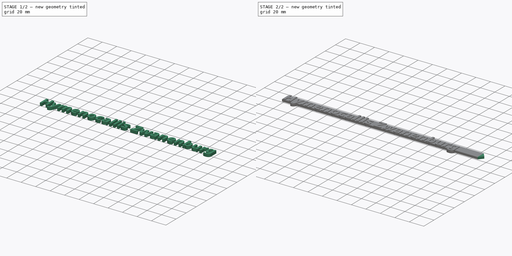
[diagram: build sequence overview — one tinted view per stage of 2, left to right]
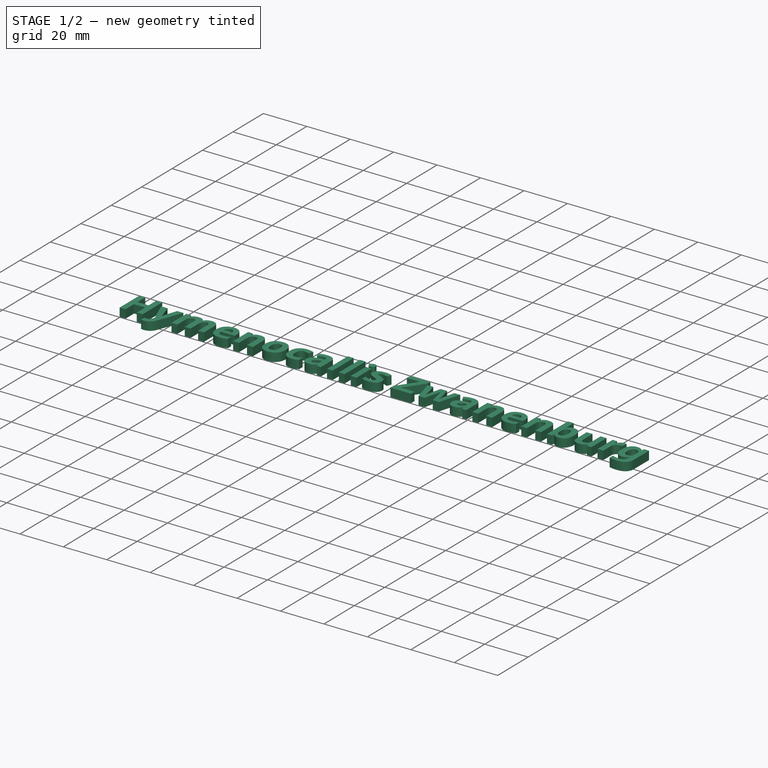
[diagram: stage 1 of 2 — iso view after this stage's code; geometry added in this stage tinted green]
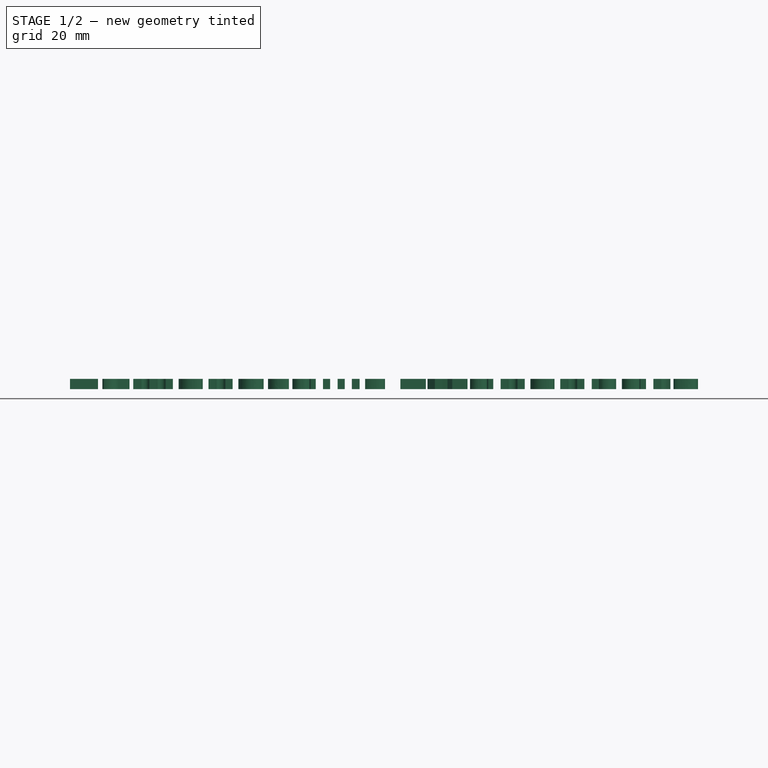
[diagram: stage 1 of 2 — front view after this stage's code; geometry added in this stage tinted green]
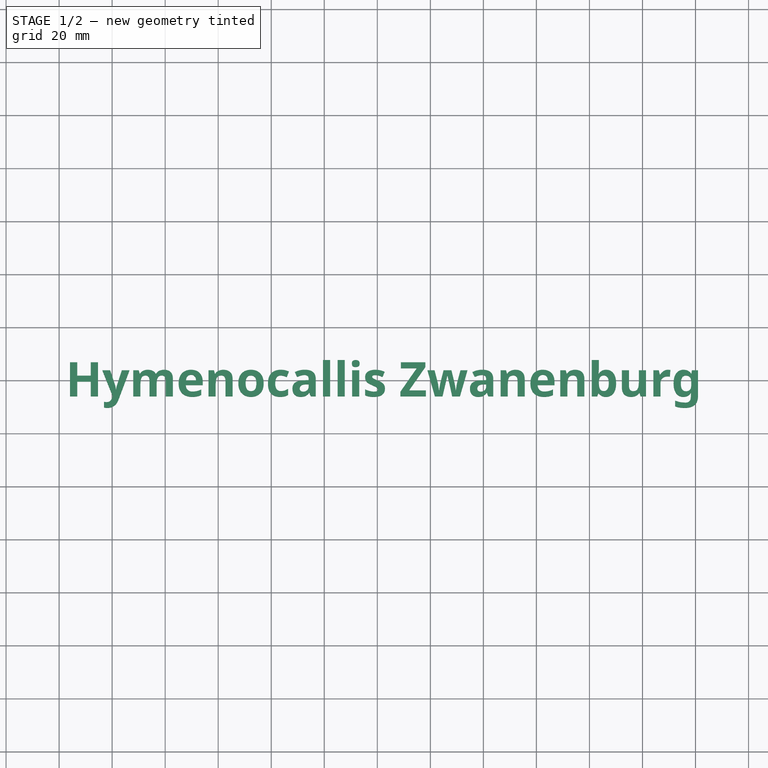
[diagram: stage 1 of 2 — top view after this stage's code; geometry added in this stage tinted green]
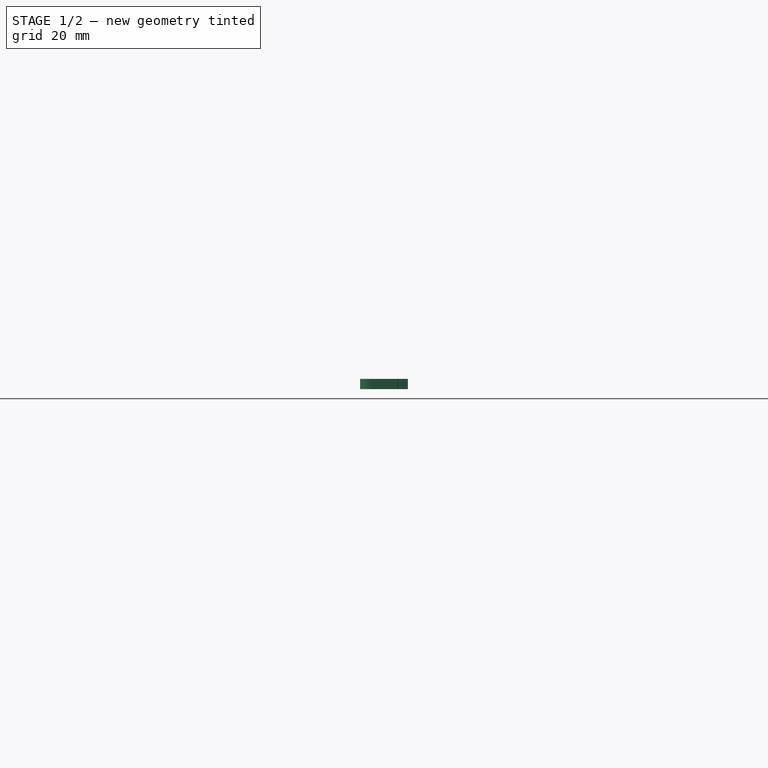
[diagram: stage 1 of 2 — right view after this stage's code; geometry added in this stage tinted green]
FCSTD DOCUMENT  (FreeCAD 1.0R39109 (Git))
Label: plant_label_text
License: All rights reserved
LicenseURL: http://en.wikipedia.org/wiki/All_rights_reserved
objects: Spreadsheet::Sheet×1, Sketcher::SketchObject×1, PartDesign::Pad×1, PartDesign::Body×1, Part::Part2DObjectPython×1, Part::Extrusion×1
note: 8 computed .brp shape members not serialized (recipe doc carries the construction recipe); baked Part::Feature solids carry a one-line shape summary decoded from their .brp

FEATURE [PartDesign::Body] Body
  AllowCompound = false
  Group = -> [Sketch,Pad]
  Origin = -> Origin
  Tip = -> Pad
FEATURE [Part::Part2DObjectPython] ShapeString001  label="bot_string"  # Draft 2D object (typed FeaturePython)
  FontFile = <path>
  Fuse = false
  Justification = 6
  JustificationReference = 0
  KeepLeftMargin = true
  MakeFace = true
  ObliqueAngle = 0
  Placement = pos=(-137.5,-6,0) rot=(0,0,1;0rad)
  ScaleToSize = false
  Size = 8
  String = Hymenocallis Zwanenburg
  Tracking = 0
  expr: .Placement.Base.x = -((Spreadsheet.label_length + Spreadsheet.spike_length) / 2)
FEATURE [Part::Extrusion] Extrude001
  Base = -> ShapeString001
  Dir = (0,0,1)
  DirMode = 2
  FaceMakerClass = Part::FaceMakerBullseye
  FaceMakerMode = 3
  LengthFwd = 3.9
  LengthRev = 0
  Solid = false
  Symmetric = false
  expr: LengthFwd = Spreadsheet.text_height
note: 1 file-system path scrubbed to <path> (originals preserved in the JSON sidecar)
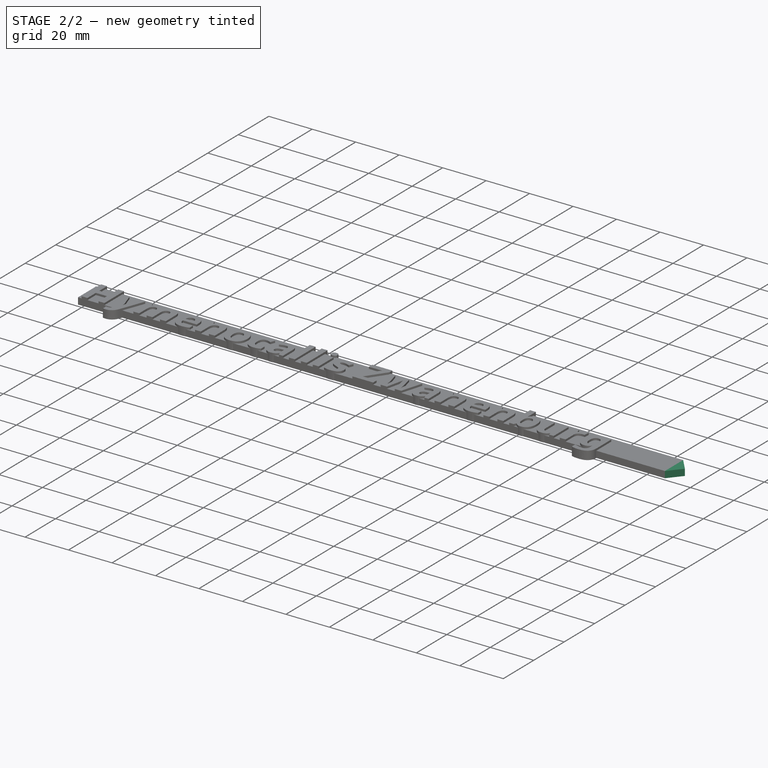
[diagram: stage 2 of 2 — iso view after this stage's code; geometry added in this stage tinted green]
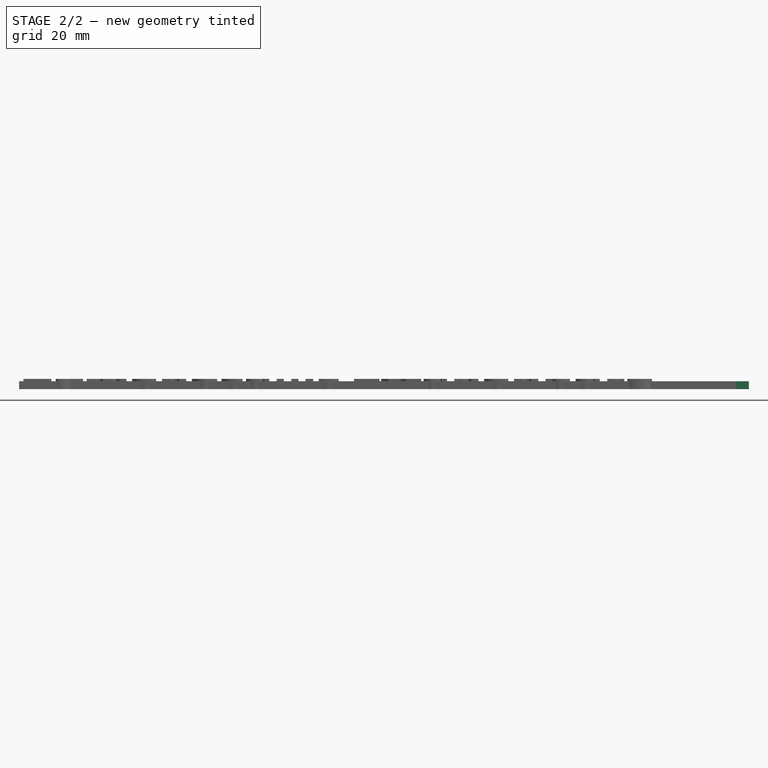
[diagram: stage 2 of 2 — front view after this stage's code; geometry added in this stage tinted green]
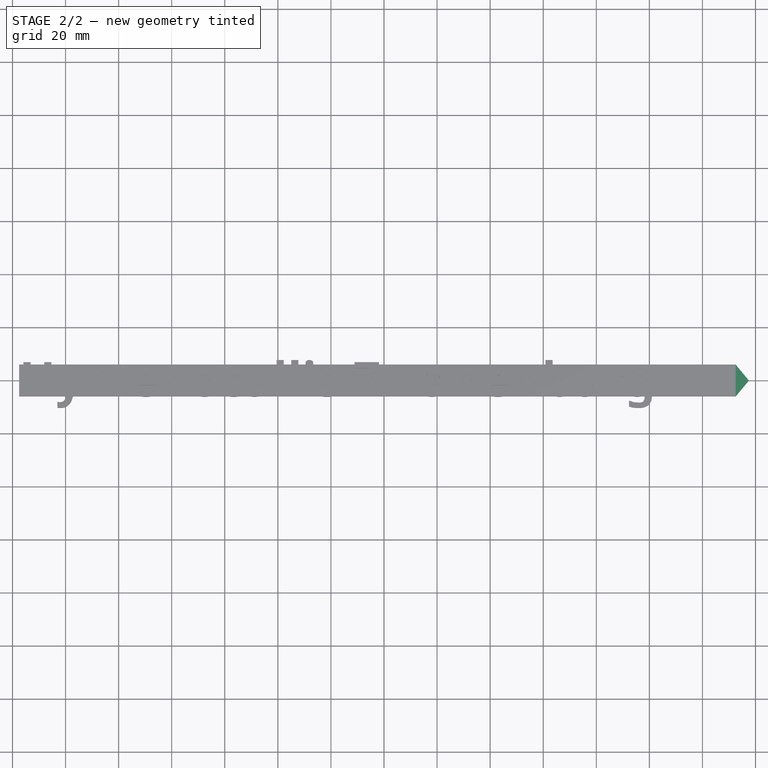
[diagram: stage 2 of 2 — top view after this stage's code; geometry added in this stage tinted green]
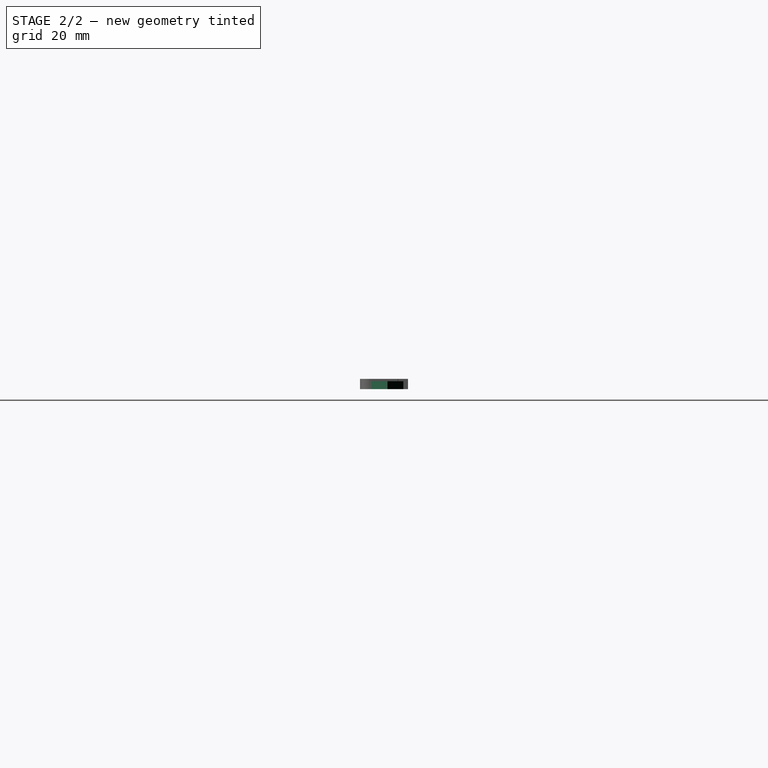
[diagram: stage 2 of 2 — right view after this stage's code; geometry added in this stage tinted green]
FEATURE [Spreadsheet::Sheet] Spreadsheet
  cells = A1='Length; B1(label_length)=270; C1='Text label height; D1(text_height)=3.9; A2='Width; B2(label_width)=12; A3='Thickness; B3(label_thickness)=3; A4='Spike length; B4(spike_length)=5; A5='Label text 1; A6='Label text 2
FEATURE [Sketcher::SketchObject] Sketch
  ArcFitTolerance = 0
  AttachmentSupport = -> [XY_Plane]
  FullyConstrained = true
  MakeInternals = false
  MapMode = 5
  expr: Constraints[10] = Spreadsheet.label_length + Spreadsheet.spike_length
  expr: Constraints[19] = Spreadsheet.spike_length
  expr: Constraints[9] = Spreadsheet.label_width
  sketch-geometry (8):
    g0: LineSegment [constr] StartX=-137.5 StartY=6 StartZ=0 EndX=137.5 EndY=6 EndZ=0
    g1: LineSegment [constr] StartX=137.5 StartY=6 StartZ=0 EndX=137.5 EndY=-6 EndZ=0
    g2: LineSegment [constr] StartX=137.5 StartY=-6 StartZ=0 EndX=-137.5 EndY=-6 EndZ=0
    g3: LineSegment StartX=-137.5 StartY=-6 StartZ=0 EndX=-137.5 EndY=6 EndZ=0
    g4: LineSegment StartX=-137.5 StartY=6 StartZ=0 EndX=132.5 EndY=6 EndZ=0
    g5: LineSegment StartX=132.5 StartY=6 StartZ=0 EndX=137.5 EndY=0 EndZ=0
    g6: LineSegment StartX=-137.5 StartY=-6 StartZ=0 EndX=132.5 EndY=-6 EndZ=0
    g7: LineSegment StartX=132.5 StartY=-6 StartZ=0 EndX=137.5 EndY=0 EndZ=0
  constraints (21):
    c: Coincident(g0,g1)
    c: Coincident(g1,g2)
    c: Coincident(g2,g3)
    c: Coincident(g3,g0)
    c: Horizontal(g0)
    c: Horizontal(g2)
    c: Vertical(g1)
    c: Vertical(g3)
    c: Symmetric(g0,g1,g-1)
    c: Distance(g3) = 12
    c: Distance(g0) = 275
    c: Coincident(g4,g3)
    c: PointOnObject(g4,g0)
    c: Coincident(g5,g4)
    c: Coincident(g6,g3)
    c: PointOnObject(g6,g2)
    c: Coincident(g7,g6)
    c: Coincident(g7,g5)
    c: Vertical(g4,g6)
    c: Distance(g4,g0) = 5
    c: Symmetric(g0,g1,g5)
FEATURE [PartDesign::Pad] Pad  label="plant_label_body"
  Direction = (0,0,1)
  Length = 3
  Length2 = 10
  Profile = -> Sketch
  ReferenceAxis = -> Sketch [N_Axis]
  Suppressed = false
  Type = 0
  expr: Length = Spreadsheet.label_thickness
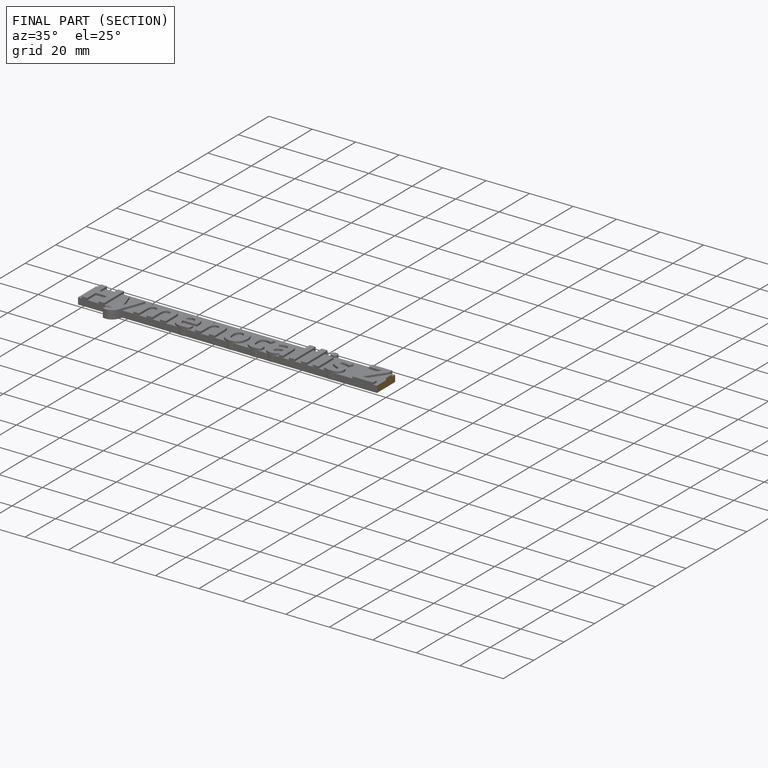
[diagram: finished part — half-section view (interior)]
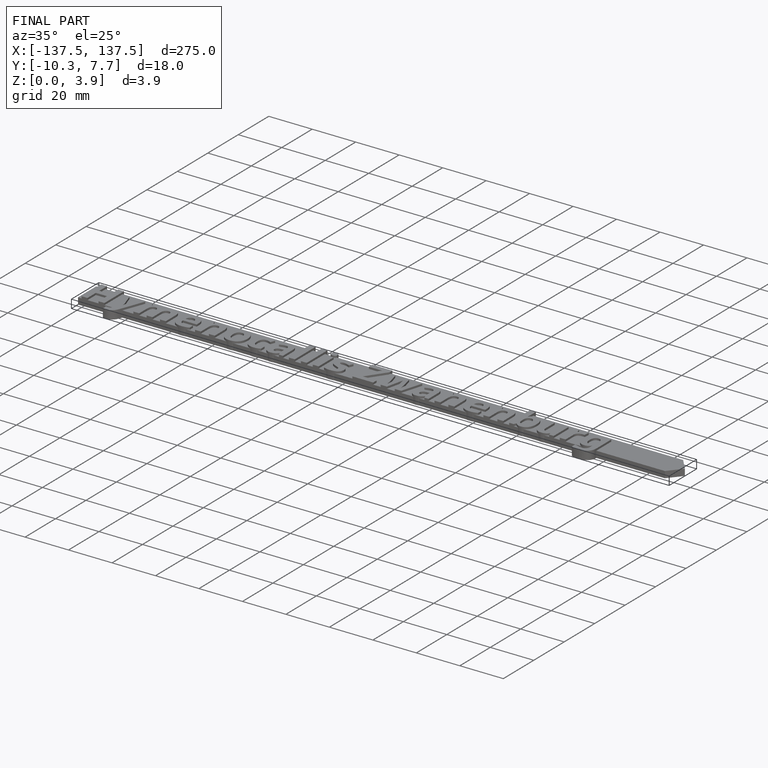
[diagram: finished part — iso view with bounding-box wireframe]
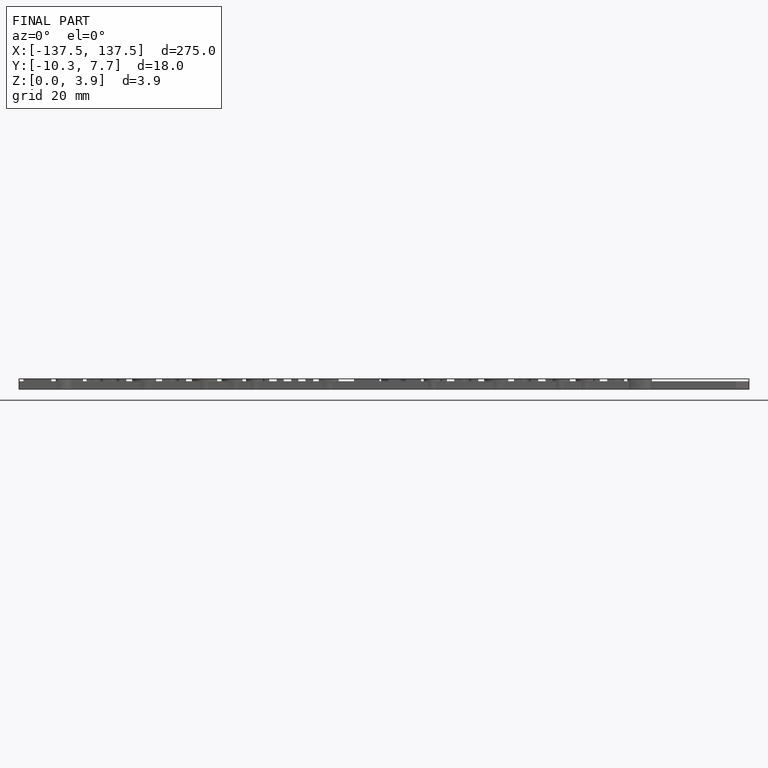
[diagram: finished part — front view with bounding-box wireframe]
